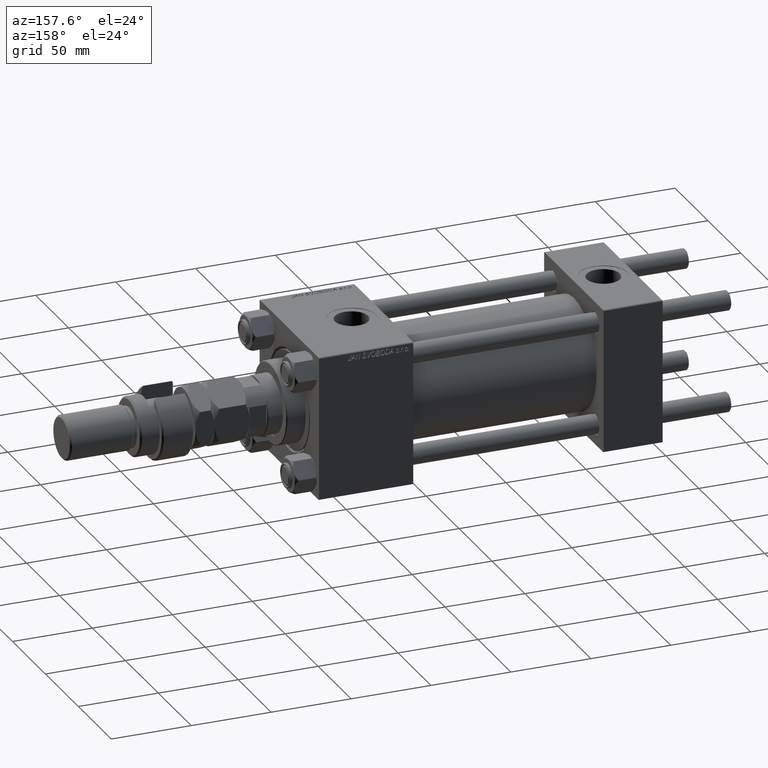
[diagram: clean part render]
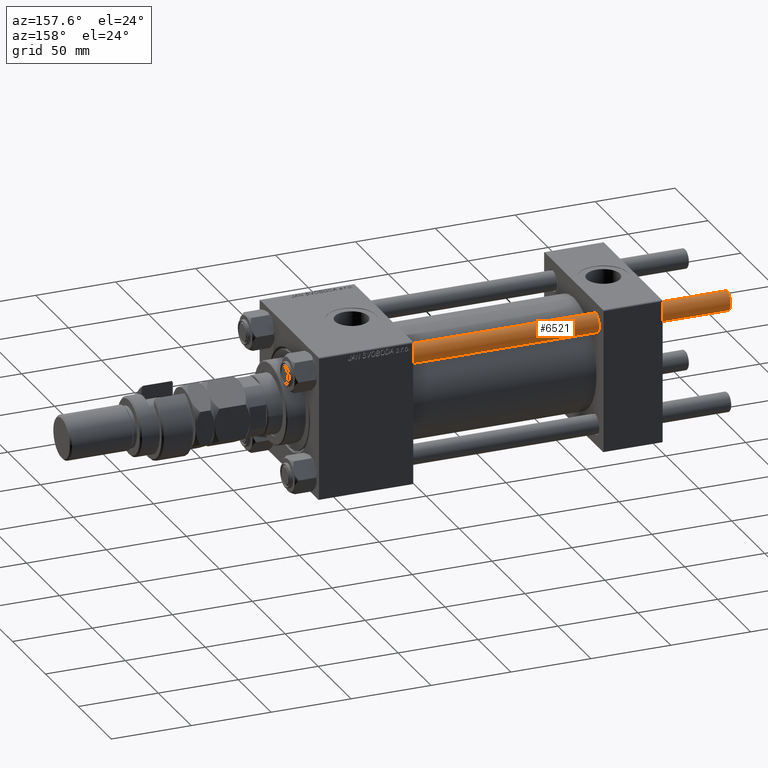
[diagram: same view with one face highlighted and labeled with its STEP entity id]
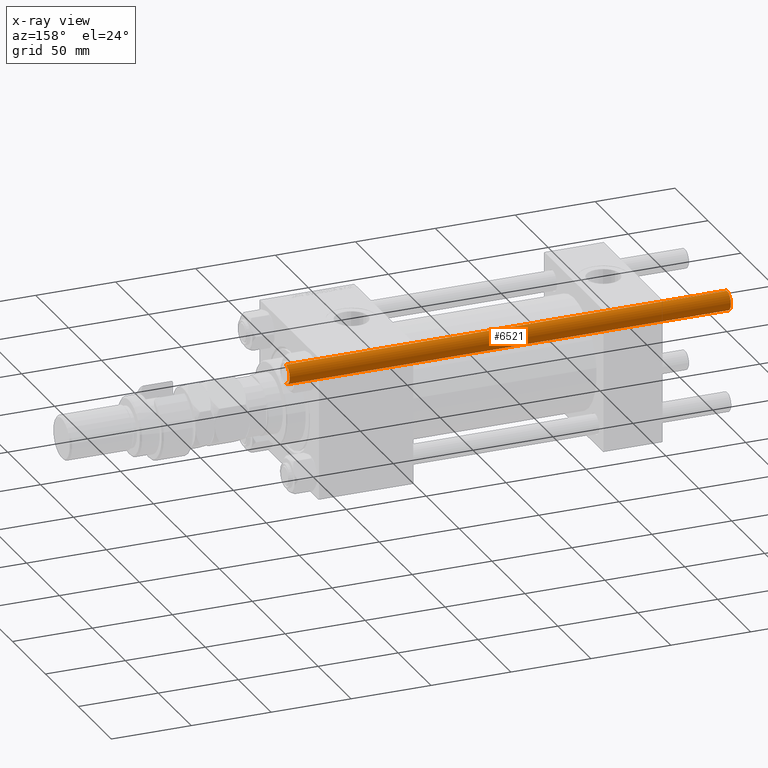
[diagram: x-ray of the same camera — body ghosted, the highlighted face saturated]
A machine part, auxiliary view. The second image highlights one B-rep face of the part: STEP entity #6521.
The next image is the same camera in x-ray: the body ghosted, the highlighted face saturated — about 0% of this face is hidden behind the body in this view.
In plain terms, the highlighted cylindrical surface (edge-blend (fillet) strip) has radius 6 mm, axis along (-1, -0, -0).
Its self-contained STEP definition (entity closure, byte-faithful):
#929 = ORIENTED_EDGE ( 'NONE', *, *, #8537, .T. ) ;
#3420 = CARTESIAN_POINT ( 'NONE',  ( 6.000000000000000888, 7.347880794884120722E-16, 276.5000000000000000 ) ) ;
#4064 = CIRCLE ( 'NONE', #39861, 6.000000000000000888 ) ;
#6134 = AXIS2_PLACEMENT_3D ( 'NONE', #39946, #10551, #15094 ) ;
#6521 = ADVANCED_FACE ( 'NONE', ( #15365 ), #27394, .T. ) ;
#6621 = CARTESIAN_POINT ( 'NONE',  ( -6.000000000000000888, 0.000000000000000000, 276.5000000000000000 ) ) ;
#8012 = ORIENTED_EDGE ( 'NONE', *, *, #36087, .F. ) ;
#8537 = EDGE_CURVE ( 'NONE', #20066, #19022, #22670, .T. ) ;
#9380 = EDGE_CURVE ( 'NONE', #19022, #19185, #13902, .T. ) ;
#10551 = DIRECTION ( 'NONE',  ( -0.000000000000000000, -0.000000000000000000, -1.000000000000000000 ) ) ;
#10931 = CARTESIAN_POINT ( 'NONE',  ( -6.000000000000000888, 0.000000000000000000, 0.5000000000000559552 ) ) ;
#11909 = DIRECTION ( 'NONE',  ( 0.000000000000000000, 0.000000000000000000, -1.000000000000000000 ) ) ;
#13902 = CIRCLE ( 'NONE', #43771, 6.000000000000000888 ) ;
#15094 = DIRECTION ( 'NONE',  ( -1.000000000000000000, 0.000000000000000000, 0.000000000000000000 ) ) ;
#15365 = FACE_OUTER_BOUND ( 'NONE', #37684, .T. ) ;
#15927 = DIRECTION ( 'NONE',  ( -0.000000000000000000, -0.000000000000000000, -1.000000000000000000 ) ) ;
#16844 = DIRECTION ( 'NONE',  ( -0.000000000000000000, -0.000000000000000000, 1.000000000000000000 ) ) ;
#19022 = VERTEX_POINT ( 'NONE', #25424 ) ;
#19185 = VERTEX_POINT ( 'NONE', #10931 ) ;
#19925 = CARTESIAN_POINT ( 'NONE',  ( 0.000000000000000000, 0.000000000000000000, 276.5000000000000000 ) ) ;
#20066 = VERTEX_POINT ( 'NONE', #3420 ) ;
#20156 = VECTOR ( 'NONE', #15927, 1000.000000000000000 ) ;
#22165 = CARTESIAN_POINT ( 'NONE',  ( 6.000000000000000888, 7.347880794884120722E-16, 277.0000000000000000 ) ) ;
#22670 = LINE ( 'NONE', #22165, #25814 ) ;
#23302 = EDGE_CURVE ( 'NONE', #52334, #20066, #4064, .T. ) ;
#23938 = DIRECTION ( 'NONE',  ( 1.000000000000000000, 0.000000000000000000, 0.000000000000000000 ) ) ;
#25424 = CARTESIAN_POINT ( 'NONE',  ( 6.000000000000000888, 7.347880794884120722E-16, 0.5000000000000559552 ) ) ;
#25814 = VECTOR ( 'NONE', #31208, 1000.000000000000000 ) ;
#27394 = CYLINDRICAL_SURFACE ( 'NONE', #6134, 6.000000000000000888 ) ;
#31208 = DIRECTION ( 'NONE',  ( -0.000000000000000000, -0.000000000000000000, -1.000000000000000000 ) ) ;
#36087 = EDGE_CURVE ( 'NONE', #52334, #19185, #39969, .T. ) ;
#37684 = EDGE_LOOP ( 'NONE', ( #48070, #929, #49552, #8012 ) ) ;
#39861 = AXIS2_PLACEMENT_3D ( 'NONE', #19925, #11909, #23938 ) ;
#39946 = CARTESIAN_POINT ( 'NONE',  ( 0.000000000000000000, 0.000000000000000000, 277.0000000000000000 ) ) ;
#39969 = LINE ( 'NONE', #48801, #20156 ) ;
#43771 = AXIS2_PLACEMENT_3D ( 'NONE', #45172, #16844, #45443 ) ;
#45172 = CARTESIAN_POINT ( 'NONE',  ( 0.000000000000000000, 0.000000000000000000, 0.5000000000000559552 ) ) ;
#45443 = DIRECTION ( 'NONE',  ( 1.000000000000000000, 0.000000000000000000, 0.000000000000000000 ) ) ;
#48070 = ORIENTED_EDGE ( 'NONE', *, *, #23302, .T. ) ;
#48801 = CARTESIAN_POINT ( 'NONE',  ( -6.000000000000000888, 0.000000000000000000, 277.0000000000000000 ) ) ;
#49552 = ORIENTED_EDGE ( 'NONE', *, *, #9380, .T. ) ;
#52334 = VERTEX_POINT ( 'NONE', #6621 ) ;